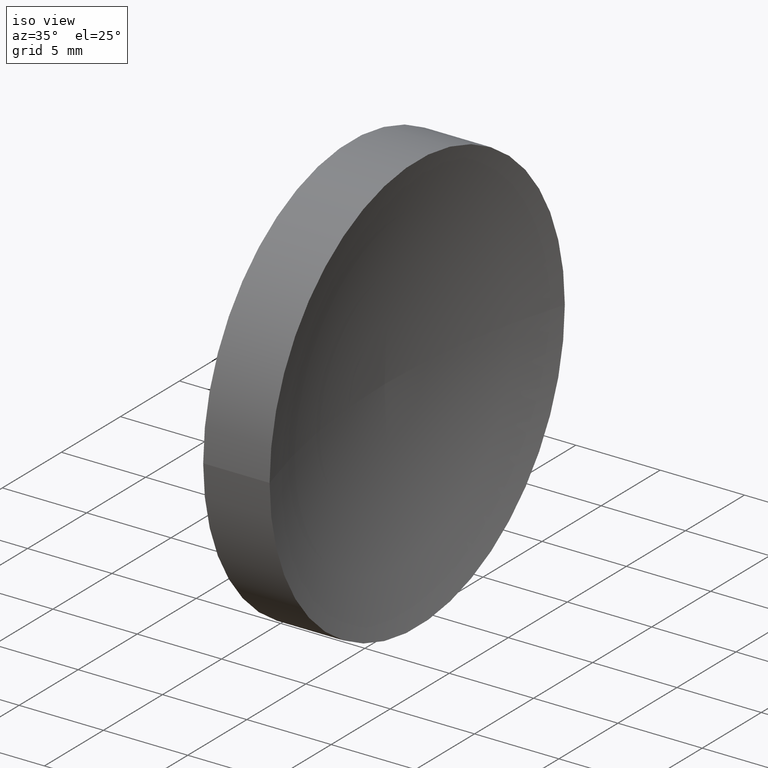
[diagram: clean part render]
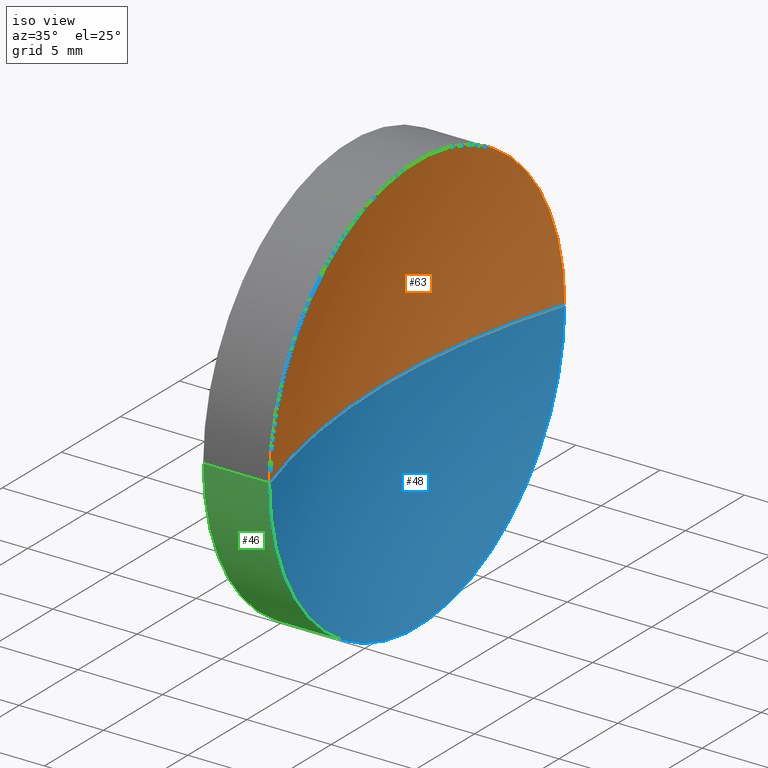
[diagram: same view with three faces highlighted in distinct colors, each labeled with its STEP entity id]
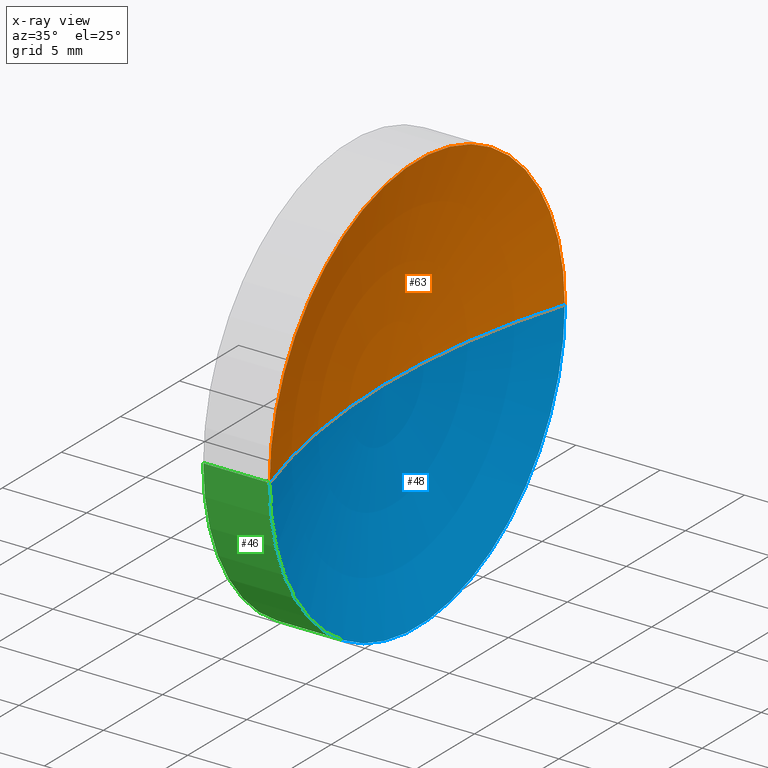
[diagram: x-ray of the same camera — body ghosted, the three highlighted faces saturated]
A machine part, iso view with three faces highlighted in distinct colors.
The next image is the same camera in x-ray (body ghosted, the three faces saturated) — at least one of them is partly hidden behind the body in this view.
Their STEP definitions:

[orange] entity #63 — the highlighted toroidal blend (fillet) surface has major radius 0.0021 mm and minor (blend) radius 41.3 mm.
#1 = CIRCLE ( 'NONE', #116, 41.29999999999999700 ) ;
#7 = CARTESIAN_POINT ( 'NONE',  ( 100.6581901028490600, 32.57872591329307700, 0.0000000000000000000 ) ) ;
#8 = DIRECTION ( 'NONE',  ( 0.0000000000000000000, -0.0000000000000000000, -1.000000000000000000 ) ) ;
#25 = DIRECTION ( 'NONE',  ( -1.000000000000000000, 0.0000000000000000000, 0.0000000000000000000 ) ) ;
#26 = DIRECTION ( 'NONE',  ( 0.0000000000000000000, -1.000000000000000000, -1.224646799147353200E-016 ) ) ;
#38 = CARTESIAN_POINT ( 'NONE',  ( 100.6581901028490600, 32.58086067571052500, 0.0000000000000000000 ) ) ;
#39 = DIRECTION ( 'NONE',  ( -1.000000000000000000, 4.853228644174421400E-016, -0.0000000000000000000 ) ) ;
#40 = AXIS2_PLACEMENT_3D ( 'NONE', #93, #128, #54 ) ;
#49 = VERTEX_POINT ( 'NONE', #150 ) ;
#50 = EDGE_CURVE ( 'NONE', #133, #49, #134, .T. ) ;
#54 = DIRECTION ( 'NONE',  ( -5.551115123125779700E-016, -1.000000000000000000, 0.0000000000000000000 ) ) ;
#57 = DIRECTION ( 'NONE',  ( -4.853228644174421400E-016, -1.000000000000000000, 0.0000000000000000000 ) ) ;
#61 = ORIENTED_EDGE ( 'NONE', *, *, #69, .F. ) ;
#63 = ADVANCED_FACE ( 'NONE', ( #161 ), #73, .F. ) ;
#69 = EDGE_CURVE ( 'NONE', #154, #133, #111, .T. ) ;
#73 = TOROIDAL_SURFACE ( 'NONE', #76, -0.002134762417448137400, 41.29999999999999700 ) ;
#76 = AXIS2_PLACEMENT_3D ( 'NONE', #7, #39, #57 ) ;
#80 = CARTESIAN_POINT ( 'NONE',  ( 61.29594135633620800, 45.07872591329310600, 1.530808498934192300E-015 ) ) ;
#93 = CARTESIAN_POINT ( 'NONE',  ( 61.29594135633620100, 32.57872591329309800, 0.0000000000000000000 ) ) ;
#107 = CARTESIAN_POINT ( 'NONE',  ( 100.6581901028490600, 32.57659115087562900, -2.614329961467927100E-019 ) ) ;
#111 = CIRCLE ( 'NONE', #40, 12.50000000000000700 ) ;
#115 = ORIENTED_EDGE ( 'NONE', *, *, #50, .F. ) ;
#116 = AXIS2_PLACEMENT_3D ( 'NONE', #38, #8, #25 ) ;
#118 = DIRECTION ( 'NONE',  ( -5.943490924618453600E-032, -1.224646799147353200E-016, 1.000000000000000000 ) ) ;
#119 = CARTESIAN_POINT ( 'NONE',  ( 61.29594135633619300, 20.07872591329308400, 0.0000000000000000000 ) ) ;
#122 = EDGE_CURVE ( 'NONE', #154, #49, #1, .T. ) ;
#128 = DIRECTION ( 'NONE',  ( -1.000000000000000000, 4.853228644174421400E-016, -0.0000000000000000000 ) ) ;
#133 = VERTEX_POINT ( 'NONE', #80 ) ;
#134 = CIRCLE ( 'NONE', #140, 41.29999999999999700 ) ;
#137 = ORIENTED_EDGE ( 'NONE', *, *, #122, .T. ) ;
#140 = AXIS2_PLACEMENT_3D ( 'NONE', #107, #118, #26 ) ;
#150 = CARTESIAN_POINT ( 'NONE',  ( 59.35819015802110200, 32.57872591329309800, 0.0000000000000000000 ) ) ;
#151 = EDGE_LOOP ( 'NONE', ( #115, #61, #137 ) ) ;
#154 = VERTEX_POINT ( 'NONE', #119 ) ;
#161 = FACE_OUTER_BOUND ( 'NONE', #151, .T. ) ;

[blue] entity #48 — the highlighted toroidal blend (fillet) surface has major radius 0.0021 mm and minor (blend) radius 41.3 mm.
#1 = CIRCLE ( 'NONE', #116, 41.29999999999999700 ) ;
#8 = DIRECTION ( 'NONE',  ( 0.0000000000000000000, -0.0000000000000000000, -1.000000000000000000 ) ) ;
#23 = ORIENTED_EDGE ( 'NONE', *, *, #122, .F. ) ;
#25 = DIRECTION ( 'NONE',  ( -1.000000000000000000, 0.0000000000000000000, 0.0000000000000000000 ) ) ;
#26 = DIRECTION ( 'NONE',  ( 0.0000000000000000000, -1.000000000000000000, -1.224646799147353200E-016 ) ) ;
#29 = DIRECTION ( 'NONE',  ( -1.000000000000000000, 4.853228644174421400E-016, -0.0000000000000000000 ) ) ;
#31 = AXIS2_PLACEMENT_3D ( 'NONE', #117, #123, #95 ) ;
#38 = CARTESIAN_POINT ( 'NONE',  ( 100.6581901028490600, 32.58086067571052500, 0.0000000000000000000 ) ) ;
#48 = ADVANCED_FACE ( 'NONE', ( #144 ), #67, .F. ) ;
#49 = VERTEX_POINT ( 'NONE', #150 ) ;
#50 = EDGE_CURVE ( 'NONE', #133, #49, #134, .T. ) ;
#64 = DIRECTION ( 'NONE',  ( -5.551115123125779700E-016, -1.000000000000000000, 0.0000000000000000000 ) ) ;
#65 = ORIENTED_EDGE ( 'NONE', *, *, #50, .T. ) ;
#67 = TOROIDAL_SURFACE ( 'NONE', #31, -0.002134762417448137400, 41.29999999999999700 ) ;
#78 = CIRCLE ( 'NONE', #132, 12.50000000000000700 ) ;
#80 = CARTESIAN_POINT ( 'NONE',  ( 61.29594135633620800, 45.07872591329310600, 1.530808498934192300E-015 ) ) ;
#95 = DIRECTION ( 'NONE',  ( -4.853228644174421400E-016, -1.000000000000000000, 0.0000000000000000000 ) ) ;
#96 = ORIENTED_EDGE ( 'NONE', *, *, #125, .F. ) ;
#107 = CARTESIAN_POINT ( 'NONE',  ( 100.6581901028490600, 32.57659115087562900, -2.614329961467927100E-019 ) ) ;
#116 = AXIS2_PLACEMENT_3D ( 'NONE', #38, #8, #25 ) ;
#117 = CARTESIAN_POINT ( 'NONE',  ( 100.6581901028490600, 32.57872591329307700, 0.0000000000000000000 ) ) ;
#118 = DIRECTION ( 'NONE',  ( -5.943490924618453600E-032, -1.224646799147353200E-016, 1.000000000000000000 ) ) ;
#119 = CARTESIAN_POINT ( 'NONE',  ( 61.29594135633619300, 20.07872591329308400, 0.0000000000000000000 ) ) ;
#121 = CARTESIAN_POINT ( 'NONE',  ( 61.29594135633620100, 32.57872591329309800, 0.0000000000000000000 ) ) ;
#122 = EDGE_CURVE ( 'NONE', #154, #49, #1, .T. ) ;
#123 = DIRECTION ( 'NONE',  ( -1.000000000000000000, 4.853228644174421400E-016, -0.0000000000000000000 ) ) ;
#125 = EDGE_CURVE ( 'NONE', #133, #154, #78, .T. ) ;
#130 = EDGE_LOOP ( 'NONE', ( #96, #65, #23 ) ) ;
#132 = AXIS2_PLACEMENT_3D ( 'NONE', #121, #29, #64 ) ;
#133 = VERTEX_POINT ( 'NONE', #80 ) ;
#134 = CIRCLE ( 'NONE', #140, 41.29999999999999700 ) ;
#140 = AXIS2_PLACEMENT_3D ( 'NONE', #107, #118, #26 ) ;
#144 = FACE_OUTER_BOUND ( 'NONE', #130, .T. ) ;
#150 = CARTESIAN_POINT ( 'NONE',  ( 59.35819015802110200, 32.57872591329309800, 0.0000000000000000000 ) ) ;
#154 = VERTEX_POINT ( 'NONE', #119 ) ;

[green] entity #46 — the highlighted cylindrical surface (partial cylindrical patch) has radius 12.5 mm, axis along (-1, 0, -0).
#4 = VECTOR ( 'NONE', #89, 1000.000000000000000 ) ;
#10 = LINE ( 'NONE', #77, #4 ) ;
#16 = VERTEX_POINT ( 'NONE', #52 ) ;
#20 = ORIENTED_EDGE ( 'NONE', *, *, #27, .F. ) ;
#21 = DIRECTION ( 'NONE',  ( -1.000000000000000000, 4.853228644174421400E-016, -0.0000000000000000000 ) ) ;
#27 = EDGE_CURVE ( 'NONE', #133, #165, #10, .T. ) ;
#29 = DIRECTION ( 'NONE',  ( -1.000000000000000000, 4.853228644174421400E-016, -0.0000000000000000000 ) ) ;
#32 = EDGE_CURVE ( 'NONE', #154, #16, #87, .T. ) ;
#36 = CARTESIAN_POINT ( 'NONE',  ( 57.35819015802111000, 32.57872591329309800, 0.0000000000000000000 ) ) ;
#41 = ORIENTED_EDGE ( 'NONE', *, *, #90, .F. ) ;
#46 = ADVANCED_FACE ( 'NONE', ( #68 ), #141, .T. ) ;
#52 = CARTESIAN_POINT ( 'NONE',  ( 57.35819015802110200, 20.07872591329309800, 0.0000000000000000000 ) ) ;
#64 = DIRECTION ( 'NONE',  ( -5.551115123125779700E-016, -1.000000000000000000, 0.0000000000000000000 ) ) ;
#68 = FACE_OUTER_BOUND ( 'NONE', #120, .T. ) ;
#77 = CARTESIAN_POINT ( 'NONE',  ( 55.00739462442118800, 45.07872591329309100, 1.530808498934191500E-015 ) ) ;
#78 = CIRCLE ( 'NONE', #132, 12.50000000000000700 ) ;
#80 = CARTESIAN_POINT ( 'NONE',  ( 61.29594135633620800, 45.07872591329310600, 1.530808498934192300E-015 ) ) ;
#82 = CIRCLE ( 'NONE', #129, 12.49999999999999600 ) ;
#87 = LINE ( 'NONE', #101, #156 ) ;
#89 = DIRECTION ( 'NONE',  ( -1.000000000000000000, 4.853228644174421400E-016, -0.0000000000000000000 ) ) ;
#90 = EDGE_CURVE ( 'NONE', #165, #16, #82, .T. ) ;
#92 = CARTESIAN_POINT ( 'NONE',  ( 55.00739462442118100, 32.57872591329309800, 0.0000000000000000000 ) ) ;
#101 = CARTESIAN_POINT ( 'NONE',  ( 55.00739462442117400, 20.07872591329309500, 0.0000000000000000000 ) ) ;
#102 = ORIENTED_EDGE ( 'NONE', *, *, #32, .T. ) ;
#103 = DIRECTION ( 'NONE',  ( -1.000000000000000000, 4.853228644174421400E-016, -0.0000000000000000000 ) ) ;
#104 = DIRECTION ( 'NONE',  ( -5.551115123125782700E-016, -1.000000000000000000, 0.0000000000000000000 ) ) ;
#105 = ORIENTED_EDGE ( 'NONE', *, *, #125, .T. ) ;
#119 = CARTESIAN_POINT ( 'NONE',  ( 61.29594135633619300, 20.07872591329308400, 0.0000000000000000000 ) ) ;
#120 = EDGE_LOOP ( 'NONE', ( #20, #105, #102, #41 ) ) ;
#121 = CARTESIAN_POINT ( 'NONE',  ( 61.29594135633620100, 32.57872591329309800, 0.0000000000000000000 ) ) ;
#125 = EDGE_CURVE ( 'NONE', #133, #154, #78, .T. ) ;
#127 = DIRECTION ( 'NONE',  ( -1.000000000000000000, 4.853228644174421400E-016, -0.0000000000000000000 ) ) ;
#129 = AXIS2_PLACEMENT_3D ( 'NONE', #36, #127, #142 ) ;
#132 = AXIS2_PLACEMENT_3D ( 'NONE', #121, #29, #64 ) ;
#133 = VERTEX_POINT ( 'NONE', #80 ) ;
#135 = CARTESIAN_POINT ( 'NONE',  ( 57.35819015802111700, 45.07872591329309100, 1.530808498934191900E-015 ) ) ;
#141 = CYLINDRICAL_SURFACE ( 'NONE', #148, 12.50000000000000000 ) ;
#142 = DIRECTION ( 'NONE',  ( -5.551115123125784700E-016, -1.000000000000000000, 0.0000000000000000000 ) ) ;
#148 = AXIS2_PLACEMENT_3D ( 'NONE', #92, #103, #104 ) ;
#154 = VERTEX_POINT ( 'NONE', #119 ) ;
#156 = VECTOR ( 'NONE', #21, 1000.000000000000000 ) ;
#165 = VERTEX_POINT ( 'NONE', #135 ) ;